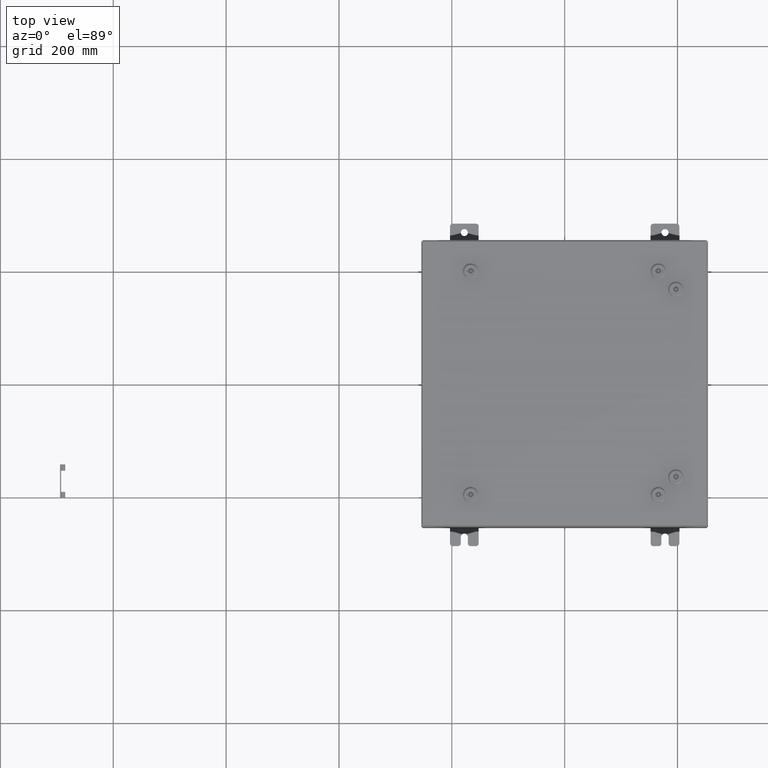
[diagram: clean part render]
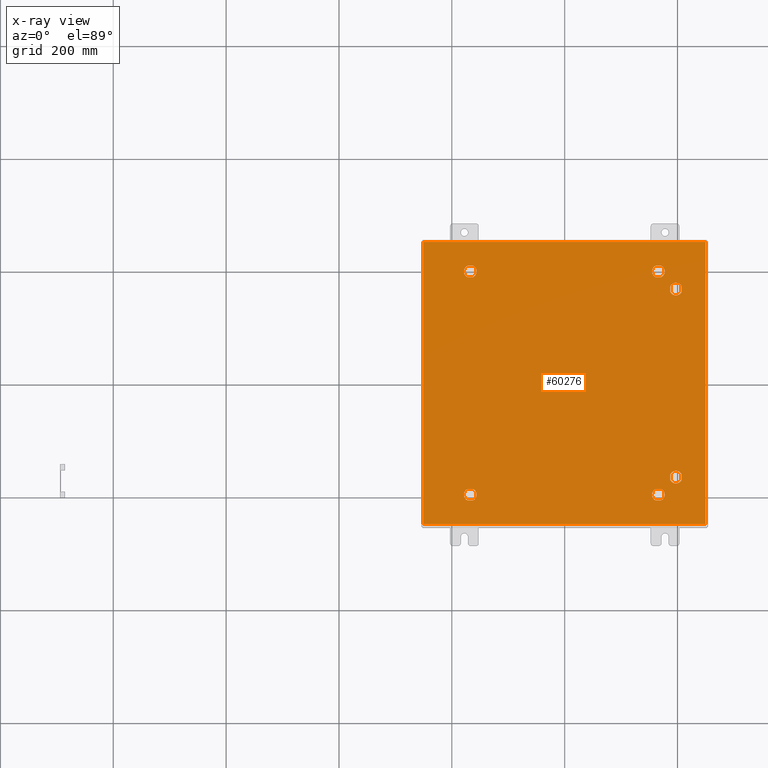
[diagram: x-ray — body ghosted, one internal face saturated and labeled with its STEP entity id]
A machine part, top view, then the same camera in x-ray: the body is ghosted and one INTERNAL B-rep face — a face not visible from any outside direction — is saturated and labeled: STEP entity #60276.
In plain terms, the highlighted planar face has unit normal (0, 0, -1).
Its self-contained STEP definition (entity closure, byte-faithful):
#142 = LINE ( 'NONE', #56309, #62393 ) ;
#546 = ORIENTED_EDGE ( 'NONE', *, *, #59353, .T. ) ;
#786 = VERTEX_POINT ( 'NONE', #62078 ) ;
#968 = LINE ( 'NONE', #16217, #23960 ) ;
#1166 = AXIS2_PLACEMENT_3D ( 'NONE', #15242, #49646, #20164 ) ;
#1490 = VERTEX_POINT ( 'NONE', #29858 ) ;
#1782 = ORIENTED_EDGE ( 'NONE', *, *, #58234, .T. ) ;
#1892 = CIRCLE ( 'NONE', #16714, 0.4424999999999972800 ) ;
#2114 = VERTEX_POINT ( 'NONE', #61902 ) ;
#2190 = VERTEX_POINT ( 'NONE', #18227 ) ;
#2306 = VERTEX_POINT ( 'NONE', #29196 ) ;
#2487 = DIRECTION ( 'NONE',  ( -0.0000000000000000000, -0.0000000000000000000, 1.000000000000000000 ) ) ;
#2811 = VERTEX_POINT ( 'NONE', #21092 ) ;
#3050 = DIRECTION ( 'NONE',  ( 0.0000000000000000000, 0.0000000000000000000, -1.000000000000000000 ) ) ;
#3096 = CARTESIAN_POINT ( 'NONE',  ( -9.849800000000000100, 9.849799999999996600, -0.07470000000000000300 ) ) ;
#3338 = FACE_BOUND ( 'NONE', #30687, .T. ) ;
#3504 = CARTESIAN_POINT ( 'NONE',  ( -6.363047624732101500, 7.392799999999993200, -0.07470000000000003000 ) ) ;
#3677 = DIRECTION ( 'NONE',  ( -1.000000000000000000, 0.0000000000000000000, -0.0000000000000000000 ) ) ;
#3880 = CARTESIAN_POINT ( 'NONE',  ( 7.787800000000006100, -6.562500000000010700, -0.07470000000000003000 ) ) ;
#4146 = CARTESIAN_POINT ( 'NONE',  ( 8.182800000000003800, -6.363047624732128100, -0.07470000000000003000 ) ) ;
#4412 = CARTESIAN_POINT ( 'NONE',  ( -6.562499999999986700, 7.787799999999989200, -0.07470000000000003000 ) ) ;
#4682 = DIRECTION ( 'NONE',  ( -0.0000000000000000000, -0.0000000000000000000, 1.000000000000000000 ) ) ;
#4832 = AXIS2_PLACEMENT_3D ( 'NONE', #37276, #7835, #42203 ) ;
#4928 = CIRCLE ( 'NONE', #5777, 0.4424999999999972800 ) ;
#5040 = CARTESIAN_POINT ( 'NONE',  ( 7.392800000000011800, 6.761952375267901200, -0.07470000000000003000 ) ) ;
#5359 = LINE ( 'NONE', #10844, #29917 ) ;
#5716 = EDGE_CURVE ( 'NONE', #46689, #44866, #51825, .T. ) ;
#5777 = AXIS2_PLACEMENT_3D ( 'NONE', #4412, #38746, #9319 ) ;
#6504 = VECTOR ( 'NONE', #20682, 39.37007874015748100 ) ;
#7279 = CARTESIAN_POINT ( 'NONE',  ( -6.761952375267870100, -8.182799999999991400, -0.07470000000000003000 ) ) ;
#7306 = EDGE_CURVE ( 'NONE', #14289, #49024, #33267, .T. ) ;
#7536 = VERTEX_POINT ( 'NONE', #27367 ) ;
#7797 = DIRECTION ( 'NONE',  ( -0.0000000000000000000, -0.0000000000000000000, 1.000000000000000000 ) ) ;
#7835 = DIRECTION ( 'NONE',  ( -0.0000000000000000000, -0.0000000000000000000, 1.000000000000000000 ) ) ;
#7957 = LINE ( 'NONE', #21910, #34100 ) ;
#8034 = LINE ( 'NONE', #60054, #6504 ) ;
#8104 = CIRCLE ( 'NONE', #24703, 0.4424999999999983400 ) ;
#8206 = DIRECTION ( 'NONE',  ( -0.0000000000000000000, -0.0000000000000000000, 1.000000000000000000 ) ) ;
#8293 = VECTOR ( 'NONE', #30197, 39.37007874015748100 ) ;
#8499 = EDGE_CURVE ( 'NONE', #27113, #55053, #27013, .T. ) ;
#8727 = ORIENTED_EDGE ( 'NONE', *, *, #42707, .T. ) ;
#8769 = DIRECTION ( 'NONE',  ( -1.000000000000000000, 0.0000000000000000000, 0.0000000000000000000 ) ) ;
#9319 = DIRECTION ( 'NONE',  ( -1.000000000000000000, 0.0000000000000000000, 0.0000000000000000000 ) ) ;
#9363 = EDGE_CURVE ( 'NONE', #786, #27113, #28500, .T. ) ;
#9660 = ORIENTED_EDGE ( 'NONE', *, *, #51922, .T. ) ;
#9722 = ORIENTED_EDGE ( 'NONE', *, *, #15443, .T. ) ;
#10274 = DIRECTION ( 'NONE',  ( -8.218046007208852600E-015, 1.000000000000000000, 0.0000000000000000000 ) ) ;
#10400 = VECTOR ( 'NONE', #32347, 39.37007874015748100 ) ;
#10523 = EDGE_LOOP ( 'NONE', ( #61213, #63430, #50514, #47094, #42264 ) ) ;
#10557 = DIRECTION ( 'NONE',  ( 8.218046007208852600E-015, 1.000000000000000000, 0.0000000000000000000 ) ) ;
#10793 = EDGE_CURVE ( 'NONE', #62149, #34119, #45318, .T. ) ;
#10844 = CARTESIAN_POINT ( 'NONE',  ( 6.363047624732095300, 8.182799999999984300, -0.07470000000000003000 ) ) ;
#10893 = DIRECTION ( 'NONE',  ( 1.000000000000000000, -2.739348669069610000E-015, 0.0000000000000000000 ) ) ;
#11008 = CIRCLE ( 'NONE', #35715, 0.4424999999999983400 ) ;
#11445 = ORIENTED_EDGE ( 'NONE', *, *, #9363, .T. ) ;
#11851 = DIRECTION ( 'NONE',  ( -0.0000000000000000000, -0.0000000000000000000, 1.000000000000000000 ) ) ;
#13038 = CARTESIAN_POINT ( 'NONE',  ( -9.849799999999996600, -9.849800000000001900, -0.07470000000000019700 ) ) ;
#13573 = DIRECTION ( 'NONE',  ( -0.0000000000000000000, -0.0000000000000000000, 1.000000000000000000 ) ) ;
#13879 = AXIS2_PLACEMENT_3D ( 'NONE', #43745, #14266, #48667 ) ;
#14266 = DIRECTION ( 'NONE',  ( -0.0000000000000000000, -0.0000000000000000000, 1.000000000000000000 ) ) ;
#14289 = VERTEX_POINT ( 'NONE', #48726 ) ;
#14366 = ORIENTED_EDGE ( 'NONE', *, *, #56400, .F. ) ;
#14478 = DIRECTION ( 'NONE',  ( 1.095739467627834900E-014, -1.000000000000000000, 0.0000000000000000000 ) ) ;
#14721 = VERTEX_POINT ( 'NONE', #26146 ) ;
#14818 = DIRECTION ( 'NONE',  ( -0.0000000000000000000, -0.0000000000000000000, 1.000000000000000000 ) ) ;
#15242 = CARTESIAN_POINT ( 'NONE',  ( -6.562499999999988500, -7.787799999999993600, -0.07470000000000003000 ) ) ;
#15443 = EDGE_CURVE ( 'NONE', #37435, #46689, #55883, .T. ) ;
#15880 = CARTESIAN_POINT ( 'NONE',  ( 7.392800000000014500, -6.761952375267901200, -0.07470000000000000300 ) ) ;
#16217 = CARTESIAN_POINT ( 'NONE',  ( 6.363047624732101500, 7.392799999999995800, -0.07470000000000003000 ) ) ;
#16293 = FACE_BOUND ( 'NONE', #39705, .T. ) ;
#16498 = EDGE_CURVE ( 'NONE', #2811, #14721, #23439, .T. ) ;
#16631 = CARTESIAN_POINT ( 'NONE',  ( 8.182800000000000300, 6.761952375267896700, -0.07470000000000000300 ) ) ;
#16714 = AXIS2_PLACEMENT_3D ( 'NONE', #41304, #11851, #46243 ) ;
#17152 = VERTEX_POINT ( 'NONE', #44399 ) ;
#17417 = EDGE_LOOP ( 'NONE', ( #9722, #38098, #51329, #34841 ) ) ;
#17460 = VERTEX_POINT ( 'NONE', #41721 ) ;
#17549 = VERTEX_POINT ( 'NONE', #56994 ) ;
#17689 = LINE ( 'NONE', #50378, #55347 ) ;
#18227 = CARTESIAN_POINT ( 'NONE',  ( 6.363047624732095300, -8.182799999999980800, -0.07470000000000003000 ) ) ;
#18578 = DIRECTION ( 'NONE',  ( -8.218046007208762600E-015, -1.000000000000000000, 0.0000000000000000000 ) ) ;
#18834 = DIRECTION ( 'NONE',  ( -0.0000000000000000000, -0.0000000000000000000, 1.000000000000000000 ) ) ;
#18972 = EDGE_CURVE ( 'NONE', #17152, #2306, #11008, .T. ) ;
#19181 = VECTOR ( 'NONE', #10274, 39.37007874015748100 ) ;
#19639 = VERTEX_POINT ( 'NONE', #42950 ) ;
#19643 = CARTESIAN_POINT ( 'NONE',  ( 7.392800000000008300, 6.363047624732128100, -0.07470000000000003000 ) ) ;
#19652 = VECTOR ( 'NONE', #48711, 39.37007874015748100 ) ;
#19770 = LINE ( 'NONE', #59674, #8293 ) ;
#19837 = CARTESIAN_POINT ( 'NONE',  ( -6.562499999999988500, -7.787799999999993600, -0.07470000000000003000 ) ) ;
#20131 = LINE ( 'NONE', #13038, #43213 ) ;
#20164 = DIRECTION ( 'NONE',  ( -1.000000000000000000, 0.0000000000000000000, 0.0000000000000000000 ) ) ;
#20316 = CARTESIAN_POINT ( 'NONE',  ( 8.182800000000000300, 6.761952375267896700, -0.07470000000000003000 ) ) ;
#20682 = DIRECTION ( 'NONE',  ( -1.000000000000000000, 2.739348669069610000E-015, 0.0000000000000000000 ) ) ;
#21092 = CARTESIAN_POINT ( 'NONE',  ( 9.849799999999996600, -9.849800000000001900, -0.07470000000000000300 ) ) ;
#21407 = CARTESIAN_POINT ( 'NONE',  ( -6.119999999999991200, -7.787799999999993600, -0.07470000000000003000 ) ) ;
#21910 = CARTESIAN_POINT ( 'NONE',  ( -6.363047624732097100, -8.182799999999986100, -0.07470000000000003000 ) ) ;
#22149 = DIRECTION ( 'NONE',  ( 1.000000000000000000, 1.369674334534793800E-014, 0.0000000000000000000 ) ) ;
#22236 = CARTESIAN_POINT ( 'NONE',  ( -6.562499999999986700, 7.787799999999989200, -0.07470000000000003000 ) ) ;
#22356 = CARTESIAN_POINT ( 'NONE',  ( -6.119999999999989400, 7.787799999999989200, -0.07470000000000003000 ) ) ;
#22412 = EDGE_CURVE ( 'NONE', #49588, #47157, #968, .T. ) ;
#23031 = CARTESIAN_POINT ( 'NONE',  ( -6.761952375267873600, -7.392799999999996700, -0.07470000000000003000 ) ) ;
#23265 = EDGE_CURVE ( 'NONE', #17549, #2190, #37437, .T. ) ;
#23439 = LINE ( 'NONE', #57047, #10400 ) ;
#23652 = LINE ( 'NONE', #53022, #51352 ) ;
#23960 = VECTOR ( 'NONE', #10893, 39.37007874015748100 ) ;
#24092 = CIRCLE ( 'NONE', #1166, 0.4424999999999972800 ) ;
#24109 = VECTOR ( 'NONE', #14478, 39.37007874015748100 ) ;
#24392 = CARTESIAN_POINT ( 'NONE',  ( 8.182800000000003800, 6.363047624732128100, -0.07470000000000003000 ) ) ;
#24703 = AXIS2_PLACEMENT_3D ( 'NONE', #43031, #13573, #47968 ) ;
#24780 = DIRECTION ( 'NONE',  ( -1.000000000000000000, 0.0000000000000000000, 0.0000000000000000000 ) ) ;
#24908 = ORIENTED_EDGE ( 'NONE', *, *, #26310, .T. ) ;
#25013 = CARTESIAN_POINT ( 'NONE',  ( -9.849800000000001900, 9.849799999999996600, -0.07470000000000243100 ) ) ;
#25353 = VERTEX_POINT ( 'NONE', #7279 ) ;
#25606 = EDGE_CURVE ( 'NONE', #19639, #49588, #26745, .T. ) ;
#26146 = CARTESIAN_POINT ( 'NONE',  ( 9.849799999999996600, 9.849799999999996600, -0.07470000000000000300 ) ) ;
#26310 = EDGE_CURVE ( 'NONE', #7536, #786, #19770, .T. ) ;
#26745 = CIRCLE ( 'NONE', #13879, 0.4424999999999972800 ) ;
#26878 = DIRECTION ( 'NONE',  ( 1.000000000000000000, -1.369674334534793800E-014, 0.0000000000000000000 ) ) ;
#26945 = CARTESIAN_POINT ( 'NONE',  ( -6.363047624732101500, 7.392799999999993200, -0.07470000000000000300 ) ) ;
#27013 = LINE ( 'NONE', #3504, #31634 ) ;
#27113 = VERTEX_POINT ( 'NONE', #45104 ) ;
#27187 = DIRECTION ( 'NONE',  ( -1.000000000000000000, 0.0000000000000000000, 0.0000000000000000000 ) ) ;
#27367 = CARTESIAN_POINT ( 'NONE',  ( -6.363047624732095300, 8.182799999999980800, -0.07470000000000003000 ) ) ;
#27763 = VERTEX_POINT ( 'NONE', #37050 ) ;
#27864 = FACE_OUTER_BOUND ( 'NONE', #45314, .T. ) ;
#28284 = ORIENTED_EDGE ( 'NONE', *, *, #45762, .T. ) ;
#28333 = VERTEX_POINT ( 'NONE', #50911 ) ;
#28500 = CIRCLE ( 'NONE', #60355, 0.4424999999999983400 ) ;
#28873 = AXIS2_PLACEMENT_3D ( 'NONE', #37232, #7797, #42158 ) ;
#29161 = CARTESIAN_POINT ( 'NONE',  ( -6.562499999999988500, -7.787799999999993600, -0.07470000000000003000 ) ) ;
#29196 = CARTESIAN_POINT ( 'NONE',  ( 6.761952375267871900, -7.392799999999992300, -0.07470000000000003000 ) ) ;
#29258 = EDGE_CURVE ( 'NONE', #40246, #62149, #8104, .T. ) ;
#29403 = FACE_BOUND ( 'NONE', #17417, .T. ) ;
#29858 = CARTESIAN_POINT ( 'NONE',  ( -6.363047624732104200, -7.392799999999997600, -0.07470000000000003000 ) ) ;
#29917 = VECTOR ( 'NONE', #40484, 39.37007874015748100 ) ;
#29991 = ORIENTED_EDGE ( 'NONE', *, *, #29258, .T. ) ;
#30197 = DIRECTION ( 'NONE',  ( -1.000000000000000000, 1.369674334534793800E-014, 0.0000000000000000000 ) ) ;
#30361 = AXIS2_PLACEMENT_3D ( 'NONE', #34084, #4682, #39027 ) ;
#30687 = EDGE_LOOP ( 'NONE', ( #29991, #53687, #1782, #35937 ) ) ;
#31557 = CARTESIAN_POINT ( 'NONE',  ( 6.761952375267871900, 7.392799999999994000, -0.07470000000000003000 ) ) ;
#31634 = VECTOR ( 'NONE', #32896, 39.37007874015748100 ) ;
#31872 = CARTESIAN_POINT ( 'NONE',  ( 7.787800000000006100, -6.562500000000010700, -0.07470000000000003000 ) ) ;
#32347 = DIRECTION ( 'NONE',  ( 0.0000000000000000000, 1.000000000000000000, 0.0000000000000000000 ) ) ;
#32477 = AXIS2_PLACEMENT_3D ( 'NONE', #37378, #3050, #3677 ) ;
#32775 = LINE ( 'NONE', #33934, #19652 ) ;
#32896 = DIRECTION ( 'NONE',  ( 1.000000000000000000, 2.739348669069610000E-015, 0.0000000000000000000 ) ) ;
#32982 = ORIENTED_EDGE ( 'NONE', *, *, #18972, .T. ) ;
#33066 = PLANE ( 'NONE',  #32477 ) ;
#33267 = CIRCLE ( 'NONE', #53298, 0.4424999999999972800 ) ;
#33934 = CARTESIAN_POINT ( 'NONE',  ( 6.363047624732101500, -7.392799999999993200, -0.07470000000000003000 ) ) ;
#34084 = CARTESIAN_POINT ( 'NONE',  ( 6.562499999999986700, 7.787799999999991800, -0.07470000000000003000 ) ) ;
#34100 = VECTOR ( 'NONE', #22149, 39.37007874015748100 ) ;
#34119 = VERTEX_POINT ( 'NONE', #16631 ) ;
#34121 = DIRECTION ( 'NONE',  ( -1.000000000000000000, 0.0000000000000000000, 0.0000000000000000000 ) ) ;
#34788 = CIRCLE ( 'NONE', #45588, 0.4424999999999983400 ) ;
#34798 = AXIS2_PLACEMENT_3D ( 'NONE', #31872, #2487, #36859 ) ;
#34841 = ORIENTED_EDGE ( 'NONE', *, *, #39071, .T. ) ;
#35365 = DIRECTION ( 'NONE',  ( 0.0000000000000000000, -1.000000000000000000, 0.0000000000000000000 ) ) ;
#35715 = AXIS2_PLACEMENT_3D ( 'NONE', #44271, #14818, #49234 ) ;
#35937 = ORIENTED_EDGE ( 'NONE', *, *, #45105, .T. ) ;
#36028 = EDGE_CURVE ( 'NONE', #2114, #19639, #5359, .T. ) ;
#36664 = VECTOR ( 'NONE', #10557, 39.37007874015748100 ) ;
#36859 = DIRECTION ( 'NONE',  ( -1.000000000000000000, 0.0000000000000000000, 0.0000000000000000000 ) ) ;
#36895 = ORIENTED_EDGE ( 'NONE', *, *, #39667, .T. ) ;
#37050 = CARTESIAN_POINT ( 'NONE',  ( 7.004999999999984800, 7.787799999999991800, -0.07470000000000003000 ) ) ;
#37232 = CARTESIAN_POINT ( 'NONE',  ( 6.562499999999986700, 7.787799999999991800, -0.07470000000000003000 ) ) ;
#37276 = CARTESIAN_POINT ( 'NONE',  ( 6.562499999999986700, -7.787799999999989200, -0.07470000000000003000 ) ) ;
#37378 = CARTESIAN_POINT ( 'NONE',  ( 0.0000000000000000000, 0.0000000000000000000, -0.07470000000000000300 ) ) ;
#37394 = ORIENTED_EDGE ( 'NONE', *, *, #25606, .T. ) ;
#37435 = VERTEX_POINT ( 'NONE', #4146 ) ;
#37437 = CIRCLE ( 'NONE', #4832, 0.4424999999999972800 ) ;
#37675 = CARTESIAN_POINT ( 'NONE',  ( -6.562499999999986700, 7.787799999999989200, -0.07470000000000003000 ) ) ;
#38098 = ORIENTED_EDGE ( 'NONE', *, *, #5716, .T. ) ;
#38204 = DIRECTION ( 'NONE',  ( -0.0000000000000000000, -0.0000000000000000000, 1.000000000000000000 ) ) ;
#38327 = CARTESIAN_POINT ( 'NONE',  ( 8.182800000000000300, -6.761952375267896700, -0.07470000000000003000 ) ) ;
#38746 = DIRECTION ( 'NONE',  ( -0.0000000000000000000, -0.0000000000000000000, 1.000000000000000000 ) ) ;
#38888 = VERTEX_POINT ( 'NONE', #38327 ) ;
#39027 = DIRECTION ( 'NONE',  ( -1.000000000000000000, 7.408401338750572900E-015, 0.0000000000000000000 ) ) ;
#39071 = EDGE_CURVE ( 'NONE', #38888, #37435, #49705, .T. ) ;
#39435 = AXIS2_PLACEMENT_3D ( 'NONE', #48304, #18834, #53258 ) ;
#39667 = EDGE_CURVE ( 'NONE', #2306, #17549, #32775, .T. ) ;
#39705 = EDGE_LOOP ( 'NONE', ( #546, #32982, #36895, #40989, #60247 ) ) ;
#40147 = ORIENTED_EDGE ( 'NONE', *, *, #60019, .T. ) ;
#40246 = VERTEX_POINT ( 'NONE', #19643 ) ;
#40484 = DIRECTION ( 'NONE',  ( -1.000000000000000000, -1.369674334534793800E-014, 0.0000000000000000000 ) ) ;
#40903 = CIRCLE ( 'NONE', #49493, 0.4424999999999972800 ) ;
#40925 = FACE_BOUND ( 'NONE', #43507, .T. ) ;
#40989 = ORIENTED_EDGE ( 'NONE', *, *, #23265, .T. ) ;
#41304 = CARTESIAN_POINT ( 'NONE',  ( 7.787800000000005200, 6.562500000000010700, -0.07470000000000003000 ) ) ;
#41721 = CARTESIAN_POINT ( 'NONE',  ( 6.761952375267868300, -8.182799999999986100, -0.07470000000000003000 ) ) ;
#41733 = ORIENTED_EDGE ( 'NONE', *, *, #8499, .T. ) ;
#42158 = DIRECTION ( 'NONE',  ( -1.000000000000000000, 2.469467112916857400E-015, 0.0000000000000000000 ) ) ;
#42203 = DIRECTION ( 'NONE',  ( -1.000000000000000000, 0.0000000000000000000, 0.0000000000000000000 ) ) ;
#42229 = EDGE_CURVE ( 'NONE', #57546, #28333, #53353, .T. ) ;
#42264 = ORIENTED_EDGE ( 'NONE', *, *, #58034, .T. ) ;
#42547 = DIRECTION ( 'NONE',  ( -1.000000000000000000, 0.0000000000000000000, 0.0000000000000000000 ) ) ;
#42707 = EDGE_CURVE ( 'NONE', #55053, #43099, #4928, .T. ) ;
#42950 = CARTESIAN_POINT ( 'NONE',  ( 6.363047624732095300, 8.182799999999984300, -0.07470000000000000300 ) ) ;
#43031 = CARTESIAN_POINT ( 'NONE',  ( 7.787800000000005200, 6.562500000000010700, -0.07470000000000003000 ) ) ;
#43099 = VERTEX_POINT ( 'NONE', #22356 ) ;
#43213 = VECTOR ( 'NONE', #52380, 39.37007874015748100 ) ;
#43507 = EDGE_LOOP ( 'NONE', ( #11445, #41733, #8727, #9660, #24908 ) ) ;
#43745 = CARTESIAN_POINT ( 'NONE',  ( 6.562499999999986700, 7.787799999999991800, -0.07470000000000003000 ) ) ;
#44271 = CARTESIAN_POINT ( 'NONE',  ( 6.562499999999986700, -7.787799999999989200, -0.07470000000000003000 ) ) ;
#44399 = CARTESIAN_POINT ( 'NONE',  ( 7.004999999999984800, -7.787799999999989200, -0.07470000000000003000 ) ) ;
#44866 = VERTEX_POINT ( 'NONE', #15880 ) ;
#45104 = CARTESIAN_POINT ( 'NONE',  ( -6.761952375267871900, 7.392799999999992300, -0.07470000000000003000 ) ) ;
#45105 = EDGE_CURVE ( 'NONE', #61452, #40246, #23652, .T. ) ;
#45201 = ORIENTED_EDGE ( 'NONE', *, *, #22412, .T. ) ;
#45314 = EDGE_LOOP ( 'NONE', ( #51254, #59391, #54532, #14366 ) ) ;
#45318 = LINE ( 'NONE', #20316, #19181 ) ;
#45588 = AXIS2_PLACEMENT_3D ( 'NONE', #29161, #63561, #34121 ) ;
#45762 = EDGE_CURVE ( 'NONE', #47157, #27763, #47455, .T. ) ;
#46243 = DIRECTION ( 'NONE',  ( -1.000000000000000000, 0.0000000000000000000, 0.0000000000000000000 ) ) ;
#46689 = VERTEX_POINT ( 'NONE', #52763 ) ;
#47094 = ORIENTED_EDGE ( 'NONE', *, *, #58880, .T. ) ;
#47157 = VERTEX_POINT ( 'NONE', #31557 ) ;
#47313 = AXIS2_PLACEMENT_3D ( 'NONE', #3880, #38204, #8769 ) ;
#47455 = CIRCLE ( 'NONE', #28873, 0.4424999999999983400 ) ;
#47968 = DIRECTION ( 'NONE',  ( -1.000000000000000000, 0.0000000000000000000, 0.0000000000000000000 ) ) ;
#48187 = ORIENTED_EDGE ( 'NONE', *, *, #36028, .T. ) ;
#48304 = CARTESIAN_POINT ( 'NONE',  ( 6.562499999999986700, -7.787799999999989200, -0.07470000000000003000 ) ) ;
#48667 = DIRECTION ( 'NONE',  ( -1.000000000000000000, 0.0000000000000000000, 0.0000000000000000000 ) ) ;
#48711 = DIRECTION ( 'NONE',  ( -1.000000000000000000, -2.739348669069610000E-015, 0.0000000000000000000 ) ) ;
#48726 = CARTESIAN_POINT ( 'NONE',  ( -6.363047624732097100, -8.182799999999986100, -0.07470000000000000300 ) ) ;
#48863 = CARTESIAN_POINT ( 'NONE',  ( 7.392800000000014500, -6.761952375267901200, -0.07470000000000003000 ) ) ;
#49024 = VERTEX_POINT ( 'NONE', #21407 ) ;
#49234 = DIRECTION ( 'NONE',  ( -1.000000000000000000, 2.469467112916857400E-015, 0.0000000000000000000 ) ) ;
#49493 = AXIS2_PLACEMENT_3D ( 'NONE', #22236, #56641, #27187 ) ;
#49588 = VERTEX_POINT ( 'NONE', #54978 ) ;
#49595 = EDGE_LOOP ( 'NONE', ( #28284, #40147, #48187, #37394, #45201 ) ) ;
#49646 = DIRECTION ( 'NONE',  ( -0.0000000000000000000, -0.0000000000000000000, 1.000000000000000000 ) ) ;
#49651 = CARTESIAN_POINT ( 'NONE',  ( 8.182800000000000300, -6.761952375267896700, -0.07470000000000003000 ) ) ;
#49705 = LINE ( 'NONE', #49651, #36664 ) ;
#50174 = DIRECTION ( 'NONE',  ( -1.000000000000000000, -0.0000000000000000000, -0.0000000000000000000 ) ) ;
#50378 = CARTESIAN_POINT ( 'NONE',  ( 9.849799999999994800, 9.849799999999996600, -0.07470000000000019700 ) ) ;
#50514 = ORIENTED_EDGE ( 'NONE', *, *, #7306, .T. ) ;
#50676 = EDGE_CURVE ( 'NONE', #25353, #14289, #7957, .T. ) ;
#50911 = CARTESIAN_POINT ( 'NONE',  ( -9.849799999999996600, -9.849800000000001900, -0.07470000000000000300 ) ) ;
#50973 = CIRCLE ( 'NONE', #39435, 0.4424999999999983400 ) ;
#51254 = ORIENTED_EDGE ( 'NONE', *, *, #16498, .F. ) ;
#51329 = ORIENTED_EDGE ( 'NONE', *, *, #62044, .T. ) ;
#51352 = VECTOR ( 'NONE', #18578, 39.37007874015748100 ) ;
#51825 = LINE ( 'NONE', #48863, #24109 ) ;
#51827 = VECTOR ( 'NONE', #35365, 39.37007874015748100 ) ;
#51922 = EDGE_CURVE ( 'NONE', #43099, #7536, #40903, .T. ) ;
#52380 = DIRECTION ( 'NONE',  ( 1.000000000000000000, -0.0000000000000000000, -0.0000000000000000000 ) ) ;
#52763 = CARTESIAN_POINT ( 'NONE',  ( 7.392800000000010000, -6.363047624732128100, -0.07470000000000003000 ) ) ;
#53022 = CARTESIAN_POINT ( 'NONE',  ( 7.392800000000011800, 6.761952375267901200, -0.07470000000000003000 ) ) ;
#53258 = DIRECTION ( 'NONE',  ( -1.000000000000000000, 4.938934225833714700E-015, 0.0000000000000000000 ) ) ;
#53298 = AXIS2_PLACEMENT_3D ( 'NONE', #19837, #54235, #24780 ) ;
#53353 = LINE ( 'NONE', #25013, #51827 ) ;
#53687 = ORIENTED_EDGE ( 'NONE', *, *, #10793, .T. ) ;
#54010 = FACE_BOUND ( 'NONE', #49595, .T. ) ;
#54235 = DIRECTION ( 'NONE',  ( -0.0000000000000000000, -0.0000000000000000000, 1.000000000000000000 ) ) ;
#54532 = ORIENTED_EDGE ( 'NONE', *, *, #42229, .F. ) ;
#54752 = CIRCLE ( 'NONE', #47313, 0.4424999999999972800 ) ;
#54978 = CARTESIAN_POINT ( 'NONE',  ( 6.363047624732101500, 7.392799999999995800, -0.07470000000000003000 ) ) ;
#55053 = VERTEX_POINT ( 'NONE', #26945 ) ;
#55347 = VECTOR ( 'NONE', #50174, 39.37007874015748100 ) ;
#55883 = CIRCLE ( 'NONE', #34798, 0.4424999999999983400 ) ;
#56309 = CARTESIAN_POINT ( 'NONE',  ( 6.363047624732095300, -8.182799999999980800, -0.07470000000000003000 ) ) ;
#56400 = EDGE_CURVE ( 'NONE', #14721, #57546, #17689, .T. ) ;
#56641 = DIRECTION ( 'NONE',  ( -0.0000000000000000000, -0.0000000000000000000, 1.000000000000000000 ) ) ;
#56994 = CARTESIAN_POINT ( 'NONE',  ( 6.363047624732101500, -7.392799999999993200, -0.07470000000000000300 ) ) ;
#57047 = CARTESIAN_POINT ( 'NONE',  ( 9.849799999999996600, -9.849800000000001900, -0.07470000000000019700 ) ) ;
#57114 = FACE_BOUND ( 'NONE', #10523, .T. ) ;
#57546 = VERTEX_POINT ( 'NONE', #3096 ) ;
#58034 = EDGE_CURVE ( 'NONE', #1490, #58533, #8034, .T. ) ;
#58234 = EDGE_CURVE ( 'NONE', #34119, #61452, #1892, .T. ) ;
#58533 = VERTEX_POINT ( 'NONE', #23031 ) ;
#58880 = EDGE_CURVE ( 'NONE', #49024, #1490, #24092, .T. ) ;
#59353 = EDGE_CURVE ( 'NONE', #17460, #17152, #50973, .T. ) ;
#59391 = ORIENTED_EDGE ( 'NONE', *, *, #61913, .F. ) ;
#59674 = CARTESIAN_POINT ( 'NONE',  ( -6.363047624732095300, 8.182799999999980800, -0.07470000000000003000 ) ) ;
#60019 = EDGE_CURVE ( 'NONE', #27763, #2114, #61744, .T. ) ;
#60054 = CARTESIAN_POINT ( 'NONE',  ( -6.363047624732104200, -7.392799999999997600, -0.07470000000000003000 ) ) ;
#60247 = ORIENTED_EDGE ( 'NONE', *, *, #63706, .T. ) ;
#60276 = ADVANCED_FACE ( 'NONE', ( #29403, #3338, #16293, #57114, #54010, #40925, #27864 ), #33066, .T. ) ;
#60355 = AXIS2_PLACEMENT_3D ( 'NONE', #37675, #8206, #42547 ) ;
#60477 = EDGE_CURVE ( 'NONE', #58533, #25353, #34788, .T. ) ;
#61213 = ORIENTED_EDGE ( 'NONE', *, *, #60477, .T. ) ;
#61452 = VERTEX_POINT ( 'NONE', #5040 ) ;
#61744 = CIRCLE ( 'NONE', #30361, 0.4424999999999983400 ) ;
#61902 = CARTESIAN_POINT ( 'NONE',  ( 6.761952375267868300, 8.182799999999989600, -0.07470000000000003000 ) ) ;
#61913 = EDGE_CURVE ( 'NONE', #28333, #2811, #20131, .T. ) ;
#62044 = EDGE_CURVE ( 'NONE', #44866, #38888, #54752, .T. ) ;
#62078 = CARTESIAN_POINT ( 'NONE',  ( -6.761952375267868300, 8.182799999999986100, -0.07470000000000003000 ) ) ;
#62149 = VERTEX_POINT ( 'NONE', #24392 ) ;
#62393 = VECTOR ( 'NONE', #26878, 39.37007874015748100 ) ;
#63430 = ORIENTED_EDGE ( 'NONE', *, *, #50676, .T. ) ;
#63561 = DIRECTION ( 'NONE',  ( -0.0000000000000000000, -0.0000000000000000000, 1.000000000000000000 ) ) ;
#63706 = EDGE_CURVE ( 'NONE', #2190, #17460, #142, .T. ) ;